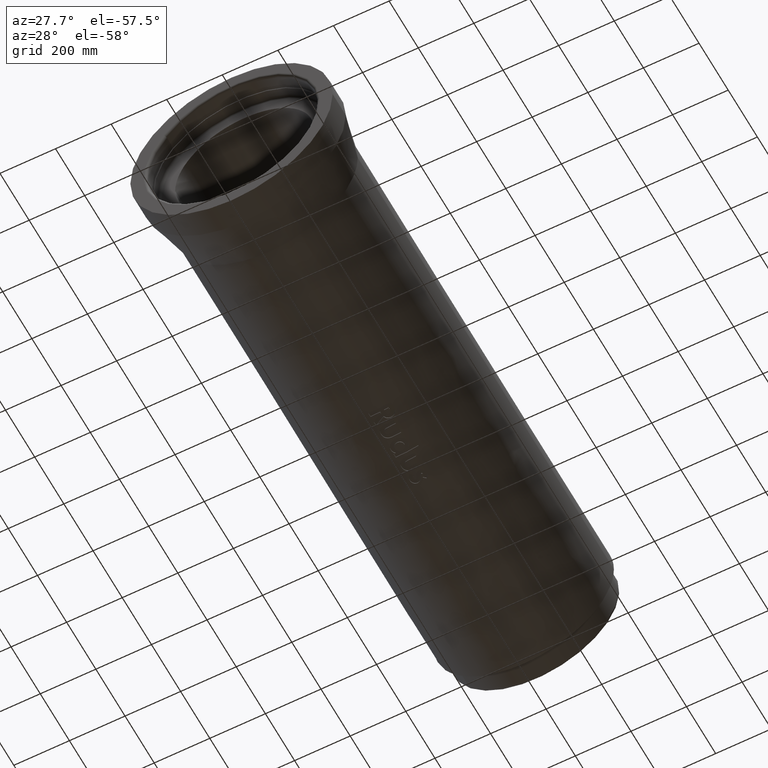
[diagram: clean part render]
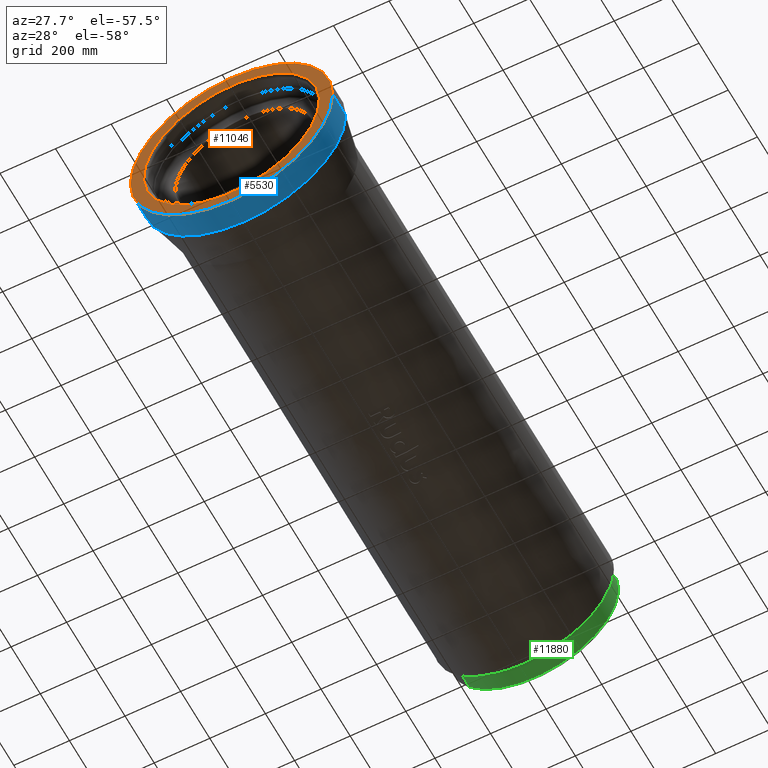
[diagram: same view with three faces highlighted in distinct colors, each labeled with its STEP entity id]
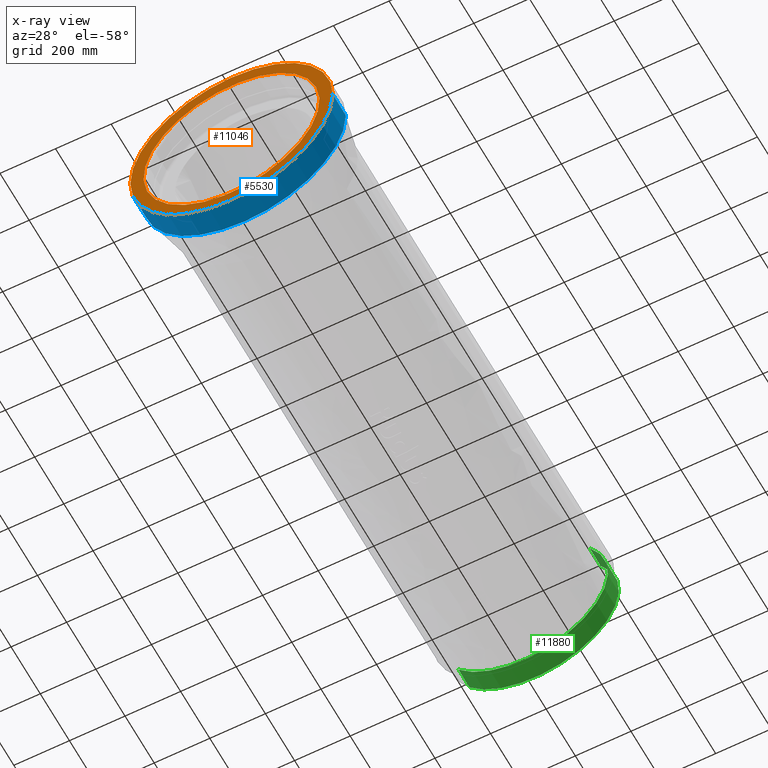
[diagram: x-ray of the same camera — body ghosted, the three highlighted faces saturated]
A machine part, auxiliary view with three faces highlighted in distinct colors.
The next image is the same camera in x-ray (body ghosted, the three faces saturated) — at least one of them is partly hidden behind the body in this view.
Their STEP definitions:

[orange] entity #11046 — the highlighted planar face has unit normal (0, 1, 0).
#404 = DIRECTION ( 'NONE',  ( -1.120721524397767776E-17, -1.878791000115572287E-16, 1.000000000000000000 ) ) ;
#777 = CARTESIAN_POINT ( 'NONE',  ( 0.0000000000000000000, 0.0000000000000000000, -89.99999999999995737 ) ) ;
#1138 = DIRECTION ( 'NONE',  ( -1.224646799147351728E-16, -0.0000000000000000000, -1.000000000000000000 ) ) ;
#1323 = DIRECTION ( 'NONE',  ( -1.224646799147351728E-16, -0.0000000000000000000, -1.000000000000000000 ) ) ;
#1516 = ORIENTED_EDGE ( 'NONE', *, *, #15154, .T. ) ;
#3178 = DIRECTION ( 'NONE',  ( -1.000000000000000000, 0.0000000000000000000, 1.143773720424268295E-16 ) ) ;
#3812 = FACE_OUTER_BOUND ( 'NONE', #19911, .T. ) ;
#3927 = DIRECTION ( 'NONE',  ( 1.000000000000000000, 0.0000000000000000000, 0.0000000000000000000 ) ) ;
#4037 = FACE_BOUND ( 'NONE', #12107, .T. ) ;
#4770 = CARTESIAN_POINT ( 'NONE',  ( -364.0000000000000000, 0.0000000000000000000, -89.99999999999991473 ) ) ;
#5716 = AXIS2_PLACEMENT_3D ( 'NONE', #9955, #1138, #22360 ) ;
#7065 = ORIENTED_EDGE ( 'NONE', *, *, #14172, .T. ) ;
#7678 = DIRECTION ( 'NONE',  ( 0.7746282087706404251, 0.6324169021909432642, 1.315430123963455640E-16 ) ) ;
#8129 = CARTESIAN_POINT ( 'NONE',  ( 364.0000000000000000, 4.457714348896365704E-14, -90.00000000000000000 ) ) ;
#9152 = PLANE ( 'NONE',  #15105 ) ;
#9955 = CARTESIAN_POINT ( 'NONE',  ( 0.0000000000000000000, 0.0000000000000000000, -89.99999999999995737 ) ) ;
#10597 = VERTEX_POINT ( 'NONE', #4770 ) ;
#10926 = ORIENTED_EDGE ( 'NONE', *, *, #13380, .T. ) ;
#10947 = CARTESIAN_POINT ( 'NONE',  ( 0.0000000000000000000, 1.690911900104014930E-14, -90.00000000000001421 ) ) ;
#11046 = ADVANCED_FACE ( 'NONE', ( #4037, #3812 ), #9152, .F. ) ;
#11262 = CIRCLE ( 'NONE', #18314, 316.5000000000000000 ) ;
#11963 = CIRCLE ( 'NONE', #21220, 316.5000000000000000 ) ;
#12107 = EDGE_LOOP ( 'NONE', ( #15536, #10926 ) ) ;
#12747 = CARTESIAN_POINT ( 'NONE',  ( 0.0000000000000000000, 0.0000000000000000000, -90.00000000000000000 ) ) ;
#13380 = EDGE_CURVE ( 'NONE', #14386, #19076, #11262, .T. ) ;
#13888 = CIRCLE ( 'NONE', #5716, 364.0000000000000000 ) ;
#14172 = EDGE_CURVE ( 'NONE', #20008, #10597, #13888, .T. ) ;
#14386 = VERTEX_POINT ( 'NONE', #16022 ) ;
#15105 = AXIS2_PLACEMENT_3D ( 'NONE', #12747, #19826, #3927 ) ;
#15154 = EDGE_CURVE ( 'NONE', #10597, #20008, #18995, .T. ) ;
#15536 = ORIENTED_EDGE ( 'NONE', *, *, #18137, .T. ) ;
#15744 = CARTESIAN_POINT ( 'NONE',  ( 245.1698280759077022, 200.1599495434335836, -89.99999999999997158 ) ) ;
#16022 = CARTESIAN_POINT ( 'NONE',  ( -245.1698280759077306, -200.1599495434334983, -90.00000000000005684 ) ) ;
#16253 = DIRECTION ( 'NONE',  ( -1.120721524397767776E-17, -1.878791000115572287E-16, 1.000000000000000000 ) ) ;
#16476 = CARTESIAN_POINT ( 'NONE',  ( 0.0000000000000000000, 1.690911900104014930E-14, -90.00000000000001421 ) ) ;
#17888 = AXIS2_PLACEMENT_3D ( 'NONE', #777, #1323, #3178 ) ;
#18137 = EDGE_CURVE ( 'NONE', #19076, #14386, #11963, .T. ) ;
#18314 = AXIS2_PLACEMENT_3D ( 'NONE', #10947, #404, #7678 ) ;
#18995 = CIRCLE ( 'NONE', #17888, 364.0000000000000000 ) ;
#19076 = VERTEX_POINT ( 'NONE', #15744 ) ;
#19826 = DIRECTION ( 'NONE',  ( 0.0000000000000000000, 0.0000000000000000000, 1.000000000000000000 ) ) ;
#19911 = EDGE_LOOP ( 'NONE', ( #1516, #7065 ) ) ;
#20008 = VERTEX_POINT ( 'NONE', #8129 ) ;
#21220 = AXIS2_PLACEMENT_3D ( 'NONE', #16476, #16253, #22042 ) ;
#22042 = DIRECTION ( 'NONE',  ( 0.7746282087706404251, 0.6324169021909432642, 1.315430123963455640E-16 ) ) ;
#22360 = DIRECTION ( 'NONE',  ( -1.000000000000000000, 0.0000000000000000000, 1.143773720424268295E-16 ) ) ;

[blue] entity #5530 — the highlighted cylindrical surface (partial cylindrical patch) has radius 364 mm, axis along (-0, -1, 0).
#131 = ORIENTED_EDGE ( 'NONE', *, *, #6759, .T. ) ;
#574 = ORIENTED_EDGE ( 'NONE', *, *, #15154, .F. ) ;
#777 = CARTESIAN_POINT ( 'NONE',  ( 0.0000000000000000000, 0.0000000000000000000, -89.99999999999995737 ) ) ;
#1323 = DIRECTION ( 'NONE',  ( -1.224646799147351728E-16, -0.0000000000000000000, -1.000000000000000000 ) ) ;
#1423 = AXIS2_PLACEMENT_3D ( 'NONE', #11286, #2465, #9546 ) ;
#2465 = DIRECTION ( 'NONE',  ( -1.224646799147351728E-16, -0.0000000000000000000, -1.000000000000000000 ) ) ;
#3178 = DIRECTION ( 'NONE',  ( -1.000000000000000000, 0.0000000000000000000, 1.143773720424268295E-16 ) ) ;
#4201 = CYLINDRICAL_SURFACE ( 'NONE', #1423, 364.0000000000000000 ) ;
#4770 = CARTESIAN_POINT ( 'NONE',  ( -364.0000000000000000, 0.0000000000000000000, -89.99999999999991473 ) ) ;
#5138 = VERTEX_POINT ( 'NONE', #13631 ) ;
#5530 = ADVANCED_FACE ( 'NONE', ( #12912 ), #4201, .T. ) ;
#6120 = EDGE_LOOP ( 'NONE', ( #12746, #131, #574, #22277 ) ) ;
#6285 = LINE ( 'NONE', #18706, #10286 ) ;
#6759 = EDGE_CURVE ( 'NONE', #14914, #20008, #13323, .T. ) ;
#8129 = CARTESIAN_POINT ( 'NONE',  ( 364.0000000000000000, 4.457714348896365704E-14, -90.00000000000000000 ) ) ;
#9546 = DIRECTION ( 'NONE',  ( -1.000000000000000000, 0.0000000000000000000, 1.143773720424268295E-16 ) ) ;
#10129 = DIRECTION ( 'NONE',  ( -1.224646799147351728E-16, -0.0000000000000000000, -1.000000000000000000 ) ) ;
#10286 = VECTOR ( 'NONE', #10129, 1000.000000000000000 ) ;
#10597 = VERTEX_POINT ( 'NONE', #4770 ) ;
#11286 = CARTESIAN_POINT ( 'NONE',  ( 0.0000000000000000000, 0.0000000000000000000, -100.0000000000000000 ) ) ;
#11488 = DIRECTION ( 'NONE',  ( -1.000000000000000000, 0.0000000000000000000, 1.224646799147351728E-16 ) ) ;
#11653 = EDGE_CURVE ( 'NONE', #5138, #10597, #6285, .T. ) ;
#11944 = DIRECTION ( 'NONE',  ( -1.224646799147351728E-16, -0.0000000000000000000, -1.000000000000000000 ) ) ;
#12330 = EDGE_CURVE ( 'NONE', #5138, #14914, #18434, .T. ) ;
#12746 = ORIENTED_EDGE ( 'NONE', *, *, #12330, .T. ) ;
#12912 = FACE_OUTER_BOUND ( 'NONE', #6120, .T. ) ;
#13323 = LINE ( 'NONE', #17149, #14029 ) ;
#13631 = CARTESIAN_POINT ( 'NONE',  ( -364.0000000000000000, 0.0000000000000000000, 7.233271910459252006E-14 ) ) ;
#14029 = VECTOR ( 'NONE', #18656, 1000.000000000000000 ) ;
#14914 = VERTEX_POINT ( 'NONE', #18892 ) ;
#15154 = EDGE_CURVE ( 'NONE', #10597, #20008, #18995, .T. ) ;
#17149 = CARTESIAN_POINT ( 'NONE',  ( 364.0000000000000000, 4.457714348896365704E-14, -100.0000000000000426 ) ) ;
#17888 = AXIS2_PLACEMENT_3D ( 'NONE', #777, #1323, #3178 ) ;
#18434 = CIRCLE ( 'NONE', #22132, 364.0000000000000000 ) ;
#18656 = DIRECTION ( 'NONE',  ( -1.224646799147351728E-16, -0.0000000000000000000, -1.000000000000000000 ) ) ;
#18706 = CARTESIAN_POINT ( 'NONE',  ( -364.0000000000000000, 0.0000000000000000000, -99.99999999999995737 ) ) ;
#18892 = CARTESIAN_POINT ( 'NONE',  ( 364.0000000000000000, 4.457714348896365704E-14, -1.682156787333468673E-14 ) ) ;
#18995 = CIRCLE ( 'NONE', #17888, 364.0000000000000000 ) ;
#20008 = VERTEX_POINT ( 'NONE', #8129 ) ;
#22132 = AXIS2_PLACEMENT_3D ( 'NONE', #22619, #11944, #11488 ) ;
#22277 = ORIENTED_EDGE ( 'NONE', *, *, #11653, .F. ) ;
#22619 = CARTESIAN_POINT ( 'NONE',  ( 0.0000000000000000000, 0.0000000000000000000, 2.775557561562891351E-14 ) ) ;

[green] entity #11880 — the highlighted cylindrical surface (partial cylindrical patch) has radius 301.5 mm, axis along (0, -1, 0).
#2250 = CARTESIAN_POINT ( 'NONE',  ( -235.8629412748957463, 187.8055455335521060, 1915.000000000000000 ) ) ;
#2437 = ORIENTED_EDGE ( 'NONE', *, *, #21979, .F. ) ;
#3131 = CYLINDRICAL_SURFACE ( 'NONE', #18800, 301.5000000000000568 ) ;
#3832 = EDGE_LOOP ( 'NONE', ( #5020, #14464, #17894, #2437 ) ) ;
#4533 = EDGE_CURVE ( 'NONE', #20131, #13759, #11029, .T. ) ;
#5020 = ORIENTED_EDGE ( 'NONE', *, *, #4533, .T. ) ;
#6839 = CARTESIAN_POINT ( 'NONE',  ( 0.0000000000000000000, 0.0000000000000000000, 1989.999999999999773 ) ) ;
#7631 = EDGE_CURVE ( 'NONE', #13759, #17461, #16546, .T. ) ;
#8352 = EDGE_CURVE ( 'NONE', #19710, #17461, #13600, .T. ) ;
#8476 = DIRECTION ( 'NONE',  ( -0.7822983126862211867, 0.6229039652854131415, 0.0000000000000000000 ) ) ;
#9880 = CARTESIAN_POINT ( 'NONE',  ( 0.0000000000000000000, 0.0000000000000000000, 1915.000000000000000 ) ) ;
#10360 = CARTESIAN_POINT ( 'NONE',  ( -235.8629412748957463, 187.8055455335521060, 1915.000000000000000 ) ) ;
#11029 = CIRCLE ( 'NONE', #19566, 301.5000000000000568 ) ;
#11717 = FACE_OUTER_BOUND ( 'NONE', #3832, .T. ) ;
#11880 = ADVANCED_FACE ( 'NONE', ( #11717 ), #3131, .T. ) ;
#13065 = DIRECTION ( 'NONE',  ( 0.0000000000000000000, 0.0000000000000000000, -1.000000000000000000 ) ) ;
#13136 = CARTESIAN_POINT ( 'NONE',  ( 235.8629412748957179, -187.8055455335520207, 1915.000000000000000 ) ) ;
#13225 = DIRECTION ( 'NONE',  ( 0.0000000000000000000, 0.0000000000000000000, -1.000000000000000000 ) ) ;
#13457 = CARTESIAN_POINT ( 'NONE',  ( 0.0000000000000000000, 0.0000000000000000000, 1915.000000000000000 ) ) ;
#13475 = DIRECTION ( 'NONE',  ( 0.0000000000000000000, 0.0000000000000000000, -1.000000000000000000 ) ) ;
#13600 = CIRCLE ( 'NONE', #16191, 301.5000000000000568 ) ;
#13759 = VERTEX_POINT ( 'NONE', #14089 ) ;
#14089 = CARTESIAN_POINT ( 'NONE',  ( 235.8629412748957179, -187.8055455335520207, 1989.999999999999773 ) ) ;
#14169 = DIRECTION ( 'NONE',  ( 0.0000000000000000000, 0.0000000000000000000, -1.000000000000000000 ) ) ;
#14464 = ORIENTED_EDGE ( 'NONE', *, *, #7631, .T. ) ;
#16191 = AXIS2_PLACEMENT_3D ( 'NONE', #9880, #13475, #8476 ) ;
#16546 = LINE ( 'NONE', #21877, #22917 ) ;
#16825 = DIRECTION ( 'NONE',  ( -0.7822983126862211867, 0.6229039652854131415, 0.0000000000000000000 ) ) ;
#17461 = VERTEX_POINT ( 'NONE', #13136 ) ;
#17894 = ORIENTED_EDGE ( 'NONE', *, *, #8352, .F. ) ;
#18462 = CARTESIAN_POINT ( 'NONE',  ( -235.8629412748957463, 187.8055455335521060, 1989.999999999999773 ) ) ;
#18800 = AXIS2_PLACEMENT_3D ( 'NONE', #13457, #13225, #16825 ) ;
#19094 = VECTOR ( 'NONE', #20787, 1000.000000000000000 ) ;
#19566 = AXIS2_PLACEMENT_3D ( 'NONE', #6839, #14169, #21231 ) ;
#19710 = VERTEX_POINT ( 'NONE', #2250 ) ;
#20131 = VERTEX_POINT ( 'NONE', #18462 ) ;
#20787 = DIRECTION ( 'NONE',  ( 0.0000000000000000000, 0.0000000000000000000, -1.000000000000000000 ) ) ;
#21018 = LINE ( 'NONE', #10360, #19094 ) ;
#21231 = DIRECTION ( 'NONE',  ( -0.7822983126862211867, 0.6229039652854131415, 0.0000000000000000000 ) ) ;
#21877 = CARTESIAN_POINT ( 'NONE',  ( 235.8629412748958032, -187.8055455335520776, 1915.000000000000000 ) ) ;
#21979 = EDGE_CURVE ( 'NONE', #20131, #19710, #21018, .T. ) ;
#22917 = VECTOR ( 'NONE', #13065, 1000.000000000000000 ) ;